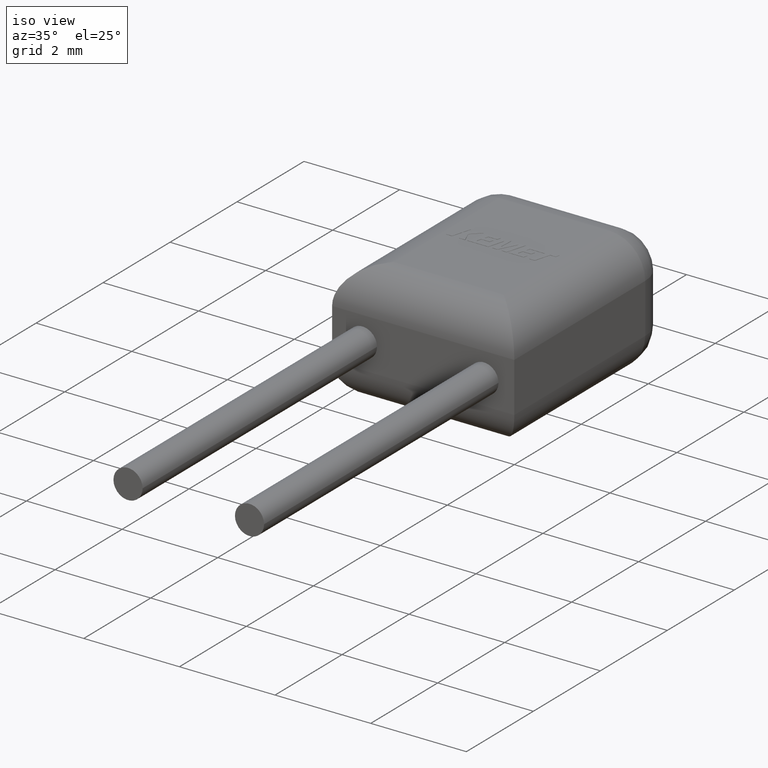
[diagram: clean part render]
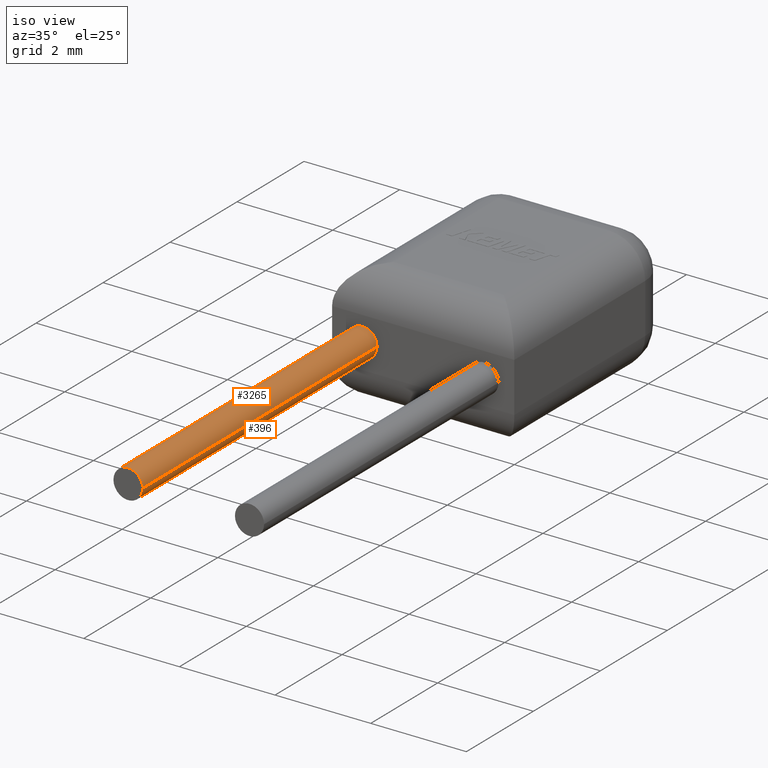
[diagram: same view with one multi-face feature highlighted, each face labeled with its STEP entity id]
A machine part, iso view. The highlighted faces form ONE feature: a constant-radius fillet chain: 2 tangent blend faces with common blend radius 0.305 mm. The faces share edges in the B-rep.
Their STEP definitions:
[1] entity #3265 (Cylinder):
#113 = DIRECTION ( 'NONE',  ( -1.000000000000000000, 0.0000000000000000000, 0.0000000000000000000 ) ) ;
#322 = CARTESIAN_POINT ( 'NONE',  ( -3.174999999999998900, -7.000000000000000000, 1.270000000000000000 ) ) ;
#325 = CARTESIAN_POINT ( 'NONE',  ( -3.174999999999999800, 0.0000000000000000000, 1.270000000000000000 ) ) ;
#404 = CARTESIAN_POINT ( 'NONE',  ( -3.480000000000000000, -3.735172737399428900E-017, 1.270000000000000000 ) ) ;
#414 = CARTESIAN_POINT ( 'NONE',  ( -3.479999999999999100, -7.000000000000000000, 1.270000000000000000 ) ) ;
#699 = DIRECTION ( 'NONE',  ( -1.224646799147353200E-016, 1.000000000000000000, -0.0000000000000000000 ) ) ;
#783 = VERTEX_POINT ( 'NONE', #2138 ) ;
#806 = DIRECTION ( 'NONE',  ( 1.000000000000000000, 0.0000000000000000000, 0.0000000000000000000 ) ) ;
#826 = EDGE_LOOP ( 'NONE', ( #2635, #1738, #2766, #955 ) ) ;
#955 = ORIENTED_EDGE ( 'NONE', *, *, #3343, .F. ) ;
#974 = CARTESIAN_POINT ( 'NONE',  ( -2.869999999999998800, -7.000000000000000000, 1.270000000000000000 ) ) ;
#1067 = CIRCLE ( 'NONE', #2056, 0.3050000000000001600 ) ;
#1228 = CYLINDRICAL_SURFACE ( 'NONE', #3431, 0.3050000000000001600 ) ;
#1282 = VERTEX_POINT ( 'NONE', #1598 ) ;
#1529 = DIRECTION ( 'NONE',  ( -1.224646799147353200E-016, 1.000000000000000000, -0.0000000000000000000 ) ) ;
#1598 = CARTESIAN_POINT ( 'NONE',  ( -2.869999999999999700, 3.735172737399428900E-017, 1.270000000000000000 ) ) ;
#1738 = ORIENTED_EDGE ( 'NONE', *, *, #3406, .T. ) ;
#2056 = AXIS2_PLACEMENT_3D ( 'NONE', #2753, #3288, #806 ) ;
#2061 = EDGE_CURVE ( 'NONE', #1282, #2307, #2351, .T. ) ;
#2138 = CARTESIAN_POINT ( 'NONE',  ( -3.479999999999999100, -7.000000000000000000, 1.270000000000000000 ) ) ;
#2253 = VECTOR ( 'NONE', #2983, 1000.000000000000000 ) ;
#2303 = DIRECTION ( 'NONE',  ( 1.224646799147353200E-016, -1.000000000000000000, -0.0000000000000000000 ) ) ;
#2307 = VERTEX_POINT ( 'NONE', #404 ) ;
#2351 = CIRCLE ( 'NONE', #2489, 0.3050000000000001600 ) ;
#2489 = AXIS2_PLACEMENT_3D ( 'NONE', #325, #2303, #2589 ) ;
#2495 = VECTOR ( 'NONE', #699, 1000.000000000000000 ) ;
#2582 = FACE_OUTER_BOUND ( 'NONE', #826, .T. ) ;
#2589 = DIRECTION ( 'NONE',  ( -1.000000000000000000, -1.224646799147353200E-016, 0.0000000000000000000 ) ) ;
#2635 = ORIENTED_EDGE ( 'NONE', *, *, #2971, .F. ) ;
#2699 = CARTESIAN_POINT ( 'NONE',  ( -2.869999999999998800, -7.000000000000000000, 1.270000000000000000 ) ) ;
#2706 = LINE ( 'NONE', #414, #2253 ) ;
#2753 = CARTESIAN_POINT ( 'NONE',  ( -3.174999999999998900, -7.000000000000000000, 1.270000000000000000 ) ) ;
#2766 = ORIENTED_EDGE ( 'NONE', *, *, #2061, .T. ) ;
#2775 = VERTEX_POINT ( 'NONE', #974 ) ;
#2971 = EDGE_CURVE ( 'NONE', #2775, #783, #1067, .T. ) ;
#2983 = DIRECTION ( 'NONE',  ( -1.224646799147353200E-016, 1.000000000000000000, -0.0000000000000000000 ) ) ;
#3228 = LINE ( 'NONE', #2699, #2495 ) ;
#3265 = ADVANCED_FACE ( 'NONE', ( #2582 ), #1228, .T. ) ;
#3288 = DIRECTION ( 'NONE',  ( 1.224646799147353200E-016, -1.000000000000000000, 0.0000000000000000000 ) ) ;
#3343 = EDGE_CURVE ( 'NONE', #783, #2307, #2706, .T. ) ;
#3406 = EDGE_CURVE ( 'NONE', #2775, #1282, #3228, .T. ) ;
#3431 = AXIS2_PLACEMENT_3D ( 'NONE', #322, #1529, #113 ) ;
[2] entity #396 (Cylinder):
#261 = ORIENTED_EDGE ( 'NONE', *, *, #3406, .F. ) ;
#345 = FACE_OUTER_BOUND ( 'NONE', #3060, .T. ) ;
#396 = ADVANCED_FACE ( 'NONE', ( #345 ), #3435, .T. ) ;
#404 = CARTESIAN_POINT ( 'NONE',  ( -3.480000000000000000, -3.735172737399428900E-017, 1.270000000000000000 ) ) ;
#414 = CARTESIAN_POINT ( 'NONE',  ( -3.479999999999999100, -7.000000000000000000, 1.270000000000000000 ) ) ;
#423 = CIRCLE ( 'NONE', #2321, 0.3050000000000001600 ) ;
#577 = CARTESIAN_POINT ( 'NONE',  ( -3.174999999999998900, -7.000000000000000000, 1.270000000000000000 ) ) ;
#686 = DIRECTION ( 'NONE',  ( -1.000000000000000000, -1.224646799147353200E-016, 0.0000000000000000000 ) ) ;
#699 = DIRECTION ( 'NONE',  ( -1.224646799147353200E-016, 1.000000000000000000, -0.0000000000000000000 ) ) ;
#783 = VERTEX_POINT ( 'NONE', #2138 ) ;
#881 = DIRECTION ( 'NONE',  ( 1.000000000000000000, 0.0000000000000000000, 0.0000000000000000000 ) ) ;
#974 = CARTESIAN_POINT ( 'NONE',  ( -2.869999999999998800, -7.000000000000000000, 1.270000000000000000 ) ) ;
#1145 = ORIENTED_EDGE ( 'NONE', *, *, #3343, .T. ) ;
#1200 = EDGE_CURVE ( 'NONE', #2307, #1282, #3191, .T. ) ;
#1282 = VERTEX_POINT ( 'NONE', #1598 ) ;
#1291 = ORIENTED_EDGE ( 'NONE', *, *, #1200, .T. ) ;
#1598 = CARTESIAN_POINT ( 'NONE',  ( -2.869999999999999700, 3.735172737399428900E-017, 1.270000000000000000 ) ) ;
#1925 = AXIS2_PLACEMENT_3D ( 'NONE', #3653, #2798, #2235 ) ;
#2138 = CARTESIAN_POINT ( 'NONE',  ( -3.479999999999999100, -7.000000000000000000, 1.270000000000000000 ) ) ;
#2175 = ORIENTED_EDGE ( 'NONE', *, *, #3057, .F. ) ;
#2235 = DIRECTION ( 'NONE',  ( -1.000000000000000000, 0.0000000000000000000, 0.0000000000000000000 ) ) ;
#2253 = VECTOR ( 'NONE', #2983, 1000.000000000000000 ) ;
#2307 = VERTEX_POINT ( 'NONE', #404 ) ;
#2321 = AXIS2_PLACEMENT_3D ( 'NONE', #577, #3710, #881 ) ;
#2495 = VECTOR ( 'NONE', #699, 1000.000000000000000 ) ;
#2699 = CARTESIAN_POINT ( 'NONE',  ( -2.869999999999998800, -7.000000000000000000, 1.270000000000000000 ) ) ;
#2706 = LINE ( 'NONE', #414, #2253 ) ;
#2775 = VERTEX_POINT ( 'NONE', #974 ) ;
#2798 = DIRECTION ( 'NONE',  ( -1.224646799147353200E-016, 1.000000000000000000, -0.0000000000000000000 ) ) ;
#2843 = AXIS2_PLACEMENT_3D ( 'NONE', #2969, #3525, #686 ) ;
#2969 = CARTESIAN_POINT ( 'NONE',  ( -3.174999999999999800, 0.0000000000000000000, 1.270000000000000000 ) ) ;
#2983 = DIRECTION ( 'NONE',  ( -1.224646799147353200E-016, 1.000000000000000000, -0.0000000000000000000 ) ) ;
#3057 = EDGE_CURVE ( 'NONE', #783, #2775, #423, .T. ) ;
#3060 = EDGE_LOOP ( 'NONE', ( #261, #2175, #1145, #1291 ) ) ;
#3191 = CIRCLE ( 'NONE', #2843, 0.3050000000000001600 ) ;
#3228 = LINE ( 'NONE', #2699, #2495 ) ;
#3343 = EDGE_CURVE ( 'NONE', #783, #2307, #2706, .T. ) ;
#3406 = EDGE_CURVE ( 'NONE', #2775, #1282, #3228, .T. ) ;
#3435 = CYLINDRICAL_SURFACE ( 'NONE', #1925, 0.3050000000000001600 ) ;
#3525 = DIRECTION ( 'NONE',  ( 1.224646799147353200E-016, -1.000000000000000000, -0.0000000000000000000 ) ) ;
#3653 = CARTESIAN_POINT ( 'NONE',  ( -3.174999999999998900, -7.000000000000000000, 1.270000000000000000 ) ) ;
#3710 = DIRECTION ( 'NONE',  ( 1.224646799147353200E-016, -1.000000000000000000, 0.0000000000000000000 ) ) ;